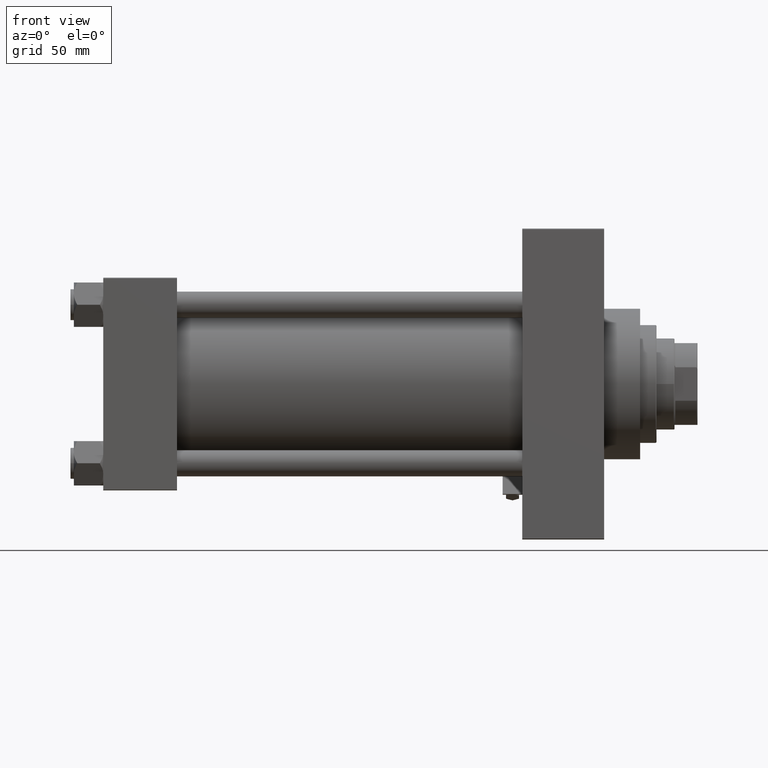
[diagram: clean part render]
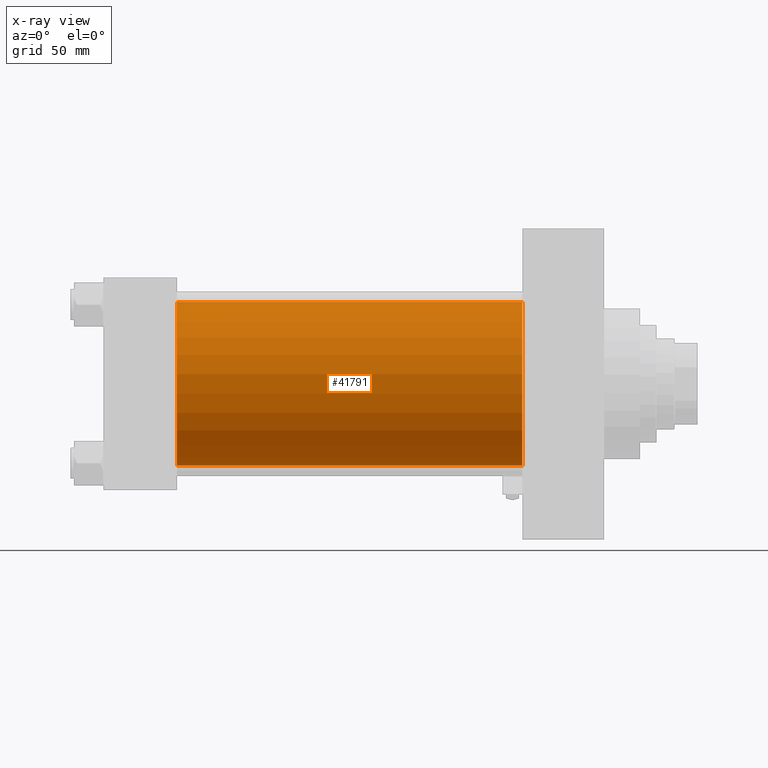
[diagram: x-ray — body ghosted, one internal face saturated and labeled with its STEP entity id]
A machine part, front view, then the same camera in x-ray: the body is ghosted and one INTERNAL B-rep face — a face not visible from any outside direction — is saturated and labeled: STEP entity #41791.
In plain terms, the highlighted cylindrical surface (partial cylindrical patch) has radius 50 mm, axis along (-1, -0, -0).
Its self-contained STEP definition (entity closure, byte-faithful):
#120 = VECTOR ( 'NONE', #11990, 1000.000000000000000 ) ;
#238 = EDGE_CURVE ( 'NONE', #12306, #38359, #10591, .T. ) ;
#444 = EDGE_CURVE ( 'NONE', #12306, #17832, #46498, .T. ) ;
#2650 = DIRECTION ( 'NONE',  ( 0.000000000000000000, 0.000000000000000000, -1.000000000000000000 ) ) ;
#3087 = DIRECTION ( 'NONE',  ( 0.000000000000000000, 0.000000000000000000, -1.000000000000000000 ) ) ;
#6990 = EDGE_LOOP ( 'NONE', ( #39097, #13462, #42168, #36336 ) ) ;
#8141 = AXIS2_PLACEMENT_3D ( 'NONE', #33028, #14497, #2650 ) ;
#8602 = AXIS2_PLACEMENT_3D ( 'NONE', #43845, #25331, #25563 ) ;
#8990 = DIRECTION ( 'NONE',  ( -1.000000000000000000, -0.000000000000000000, -0.000000000000000000 ) ) ;
#9950 = CARTESIAN_POINT ( 'NONE',  ( 256.0000000000000000, -2.602085213965210642E-15, 50.00000000000000000 ) ) ;
#10591 = CIRCLE ( 'NONE', #18481, 50.00000000000000000 ) ;
#11990 = DIRECTION ( 'NONE',  ( -1.000000000000000000, -0.000000000000000000, -0.000000000000000000 ) ) ;
#12306 = VERTEX_POINT ( 'NONE', #9950 ) ;
#13248 = CYLINDRICAL_SURFACE ( 'NONE', #8602, 50.00000000000000000 ) ;
#13462 = ORIENTED_EDGE ( 'NONE', *, *, #27262, .T. ) ;
#14123 = CARTESIAN_POINT ( 'NONE',  ( 45.00000000000000000, 3.521148781771555838E-15, -50.00000000000000000 ) ) ;
#14497 = DIRECTION ( 'NONE',  ( 1.000000000000000000, 0.000000000000000000, 0.000000000000000000 ) ) ;
#15393 = CARTESIAN_POINT ( 'NONE',  ( 256.0000000000000000, 3.521148781771555838E-15, -50.00000000000000000 ) ) ;
#16887 = CARTESIAN_POINT ( 'NONE',  ( 256.0000000000000000, -2.602085213965210642E-15, 50.00000000000000000 ) ) ;
#17832 = VERTEX_POINT ( 'NONE', #29489 ) ;
#18404 = CARTESIAN_POINT ( 'NONE',  ( 256.0000000000000000, -2.602085213965210642E-15, 0.000000000000000000 ) ) ;
#18481 = AXIS2_PLACEMENT_3D ( 'NONE', #18404, #22595, #3087 ) ;
#22595 = DIRECTION ( 'NONE',  ( 1.000000000000000000, 0.000000000000000000, 0.000000000000000000 ) ) ;
#25331 = DIRECTION ( 'NONE',  ( -1.000000000000000000, -0.000000000000000000, -0.000000000000000000 ) ) ;
#25563 = DIRECTION ( 'NONE',  ( 0.000000000000000000, 0.000000000000000000, 1.000000000000000000 ) ) ;
#25564 = VERTEX_POINT ( 'NONE', #14123 ) ;
#26254 = CIRCLE ( 'NONE', #8141, 50.00000000000000000 ) ;
#27262 = EDGE_CURVE ( 'NONE', #38359, #25564, #38873, .T. ) ;
#29489 = CARTESIAN_POINT ( 'NONE',  ( 45.00000000000000000, -2.602085213965210642E-15, 50.00000000000000000 ) ) ;
#31739 = EDGE_CURVE ( 'NONE', #17832, #25564, #26254, .T. ) ;
#33028 = CARTESIAN_POINT ( 'NONE',  ( 45.00000000000000000, -2.602085213965210642E-15, 0.000000000000000000 ) ) ;
#35966 = FACE_OUTER_BOUND ( 'NONE', #6990, .T. ) ;
#36336 = ORIENTED_EDGE ( 'NONE', *, *, #444, .F. ) ;
#38359 = VERTEX_POINT ( 'NONE', #15393 ) ;
#38873 = LINE ( 'NONE', #42563, #120 ) ;
#39097 = ORIENTED_EDGE ( 'NONE', *, *, #238, .T. ) ;
#41791 = ADVANCED_FACE ( 'NONE', ( #35966 ), #13248, .F. ) ;
#42168 = ORIENTED_EDGE ( 'NONE', *, *, #31739, .F. ) ;
#42563 = CARTESIAN_POINT ( 'NONE',  ( 256.0000000000000000, 3.521148781771555838E-15, -50.00000000000000000 ) ) ;
#43845 = CARTESIAN_POINT ( 'NONE',  ( 256.0000000000000000, -2.602085213965210642E-15, 0.000000000000000000 ) ) ;
#46097 = VECTOR ( 'NONE', #8990, 1000.000000000000000 ) ;
#46498 = LINE ( 'NONE', #16887, #46097 ) ;